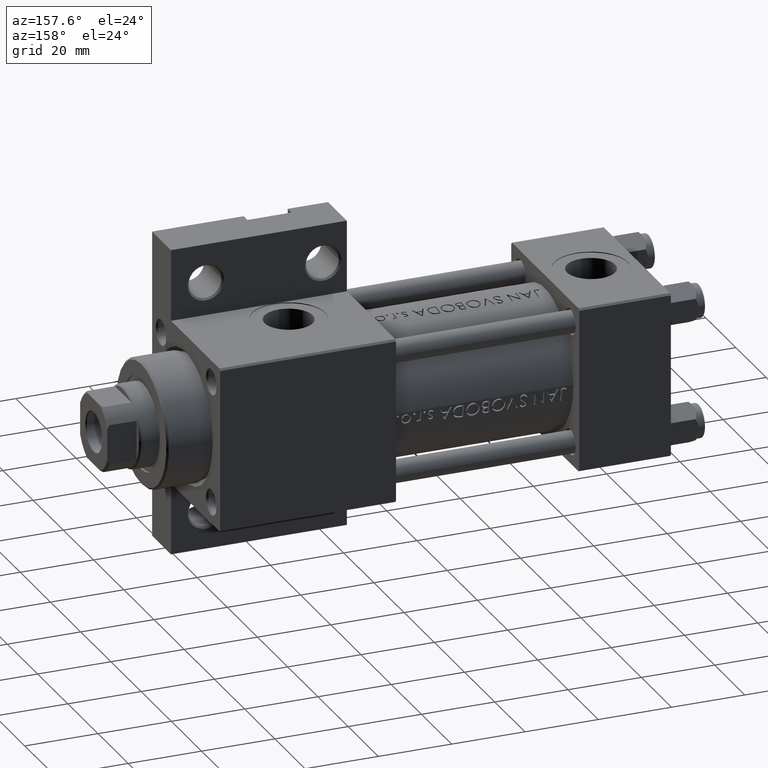
[diagram: clean part render]
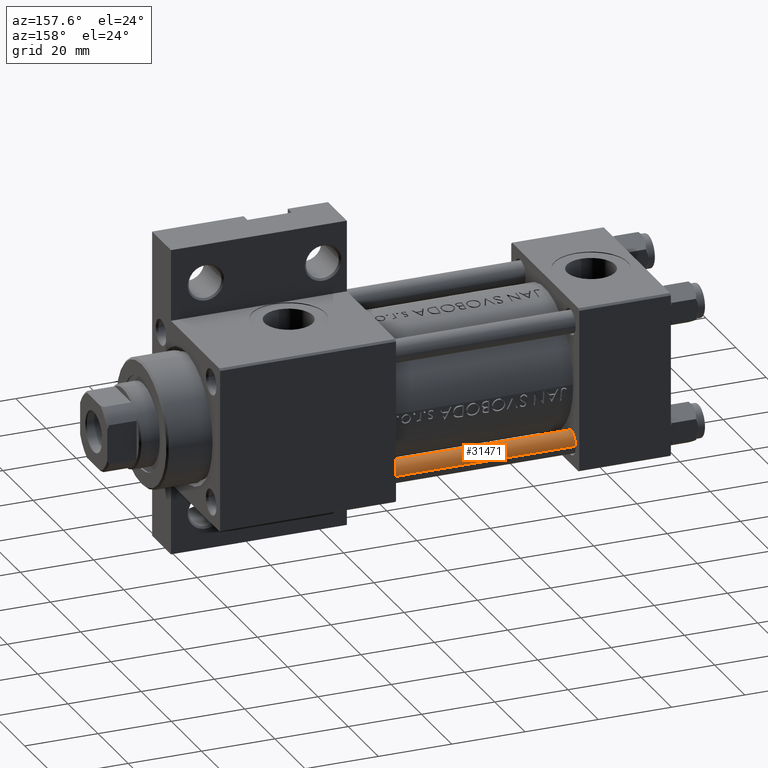
[diagram: same view with one face highlighted and labeled with its STEP entity id]
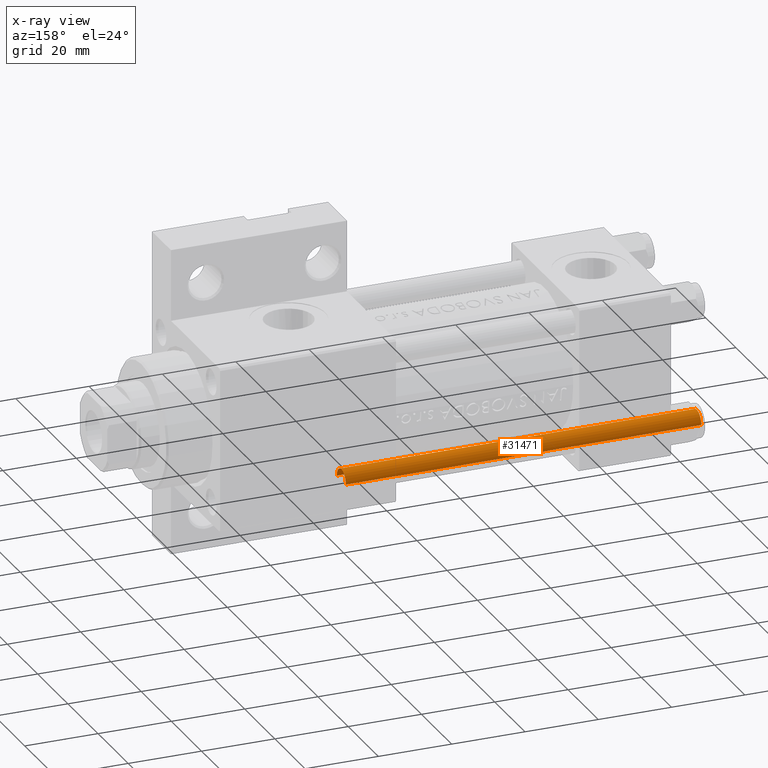
[diagram: x-ray of the same camera — body ghosted, the highlighted face saturated]
A machine part, auxiliary view. The second image highlights one B-rep face of the part: STEP entity #31471.
The next image is the same camera in x-ray: the body ghosted, the highlighted face saturated — about 0% of this face is hidden behind the body in this view.
In plain terms, the highlighted cylindrical surface (edge-blend (fillet) strip) has radius 3 mm, axis along (-1, -0, 0).
Its self-contained STEP definition (entity closure, byte-faithful):
#2288 = AXIS2_PLACEMENT_3D ( 'NONE', #33256, #31647, #35517 ) ;
#2649 = CARTESIAN_POINT ( 'NONE',  ( -3.000000000000000444, 0.000000000000000000, 0.5000000000000281997 ) ) ;
#3348 = CARTESIAN_POINT ( 'NONE',  ( -3.000000000000000444, 0.000000000000000000, 98.00000000000000000 ) ) ;
#3568 = CIRCLE ( 'NONE', #19747, 3.000000000000000444 ) ;
#5930 = CARTESIAN_POINT ( 'NONE',  ( 3.000000000000000444, 3.673940397442060361E-16, 98.00000000000000000 ) ) ;
#5991 = CARTESIAN_POINT ( 'NONE',  ( 3.000000000000000444, 3.673940397442060361E-16, 97.50000000000001421 ) ) ;
#8453 = DIRECTION ( 'NONE',  ( 0.000000000000000000, 0.000000000000000000, -1.000000000000000000 ) ) ;
#8809 = CARTESIAN_POINT ( 'NONE',  ( 3.000000000000000444, 3.673940397442060361E-16, 0.5000000000000281997 ) ) ;
#9239 = DIRECTION ( 'NONE',  ( -1.000000000000000000, 0.000000000000000000, 0.000000000000000000 ) ) ;
#12522 = ORIENTED_EDGE ( 'NONE', *, *, #44628, .T. ) ;
#13025 = CARTESIAN_POINT ( 'NONE',  ( 0.000000000000000000, 0.000000000000000000, 97.50000000000001421 ) ) ;
#13577 = VERTEX_POINT ( 'NONE', #18100 ) ;
#14953 = VERTEX_POINT ( 'NONE', #5991 ) ;
#15295 = ORIENTED_EDGE ( 'NONE', *, *, #21025, .T. ) ;
#18100 = CARTESIAN_POINT ( 'NONE',  ( -3.000000000000000444, 0.000000000000000000, 97.50000000000001421 ) ) ;
#19390 = CARTESIAN_POINT ( 'NONE',  ( 0.000000000000000000, 0.000000000000000000, 98.00000000000000000 ) ) ;
#19540 = VERTEX_POINT ( 'NONE', #8809 ) ;
#19628 = CYLINDRICAL_SURFACE ( 'NONE', #22240, 3.000000000000000444 ) ;
#19747 = AXIS2_PLACEMENT_3D ( 'NONE', #13025, #8453, #34983 ) ;
#21025 = EDGE_CURVE ( 'NONE', #13577, #14953, #3568, .T. ) ;
#22240 = AXIS2_PLACEMENT_3D ( 'NONE', #19390, #23238, #9239 ) ;
#23238 = DIRECTION ( 'NONE',  ( -0.000000000000000000, -0.000000000000000000, -1.000000000000000000 ) ) ;
#23874 = VERTEX_POINT ( 'NONE', #2649 ) ;
#24475 = LINE ( 'NONE', #5930, #27161 ) ;
#27161 = VECTOR ( 'NONE', #43543, 1000.000000000000000 ) ;
#28750 = VECTOR ( 'NONE', #32741, 1000.000000000000000 ) ;
#31471 = ADVANCED_FACE ( 'NONE', ( #37972 ), #19628, .T. ) ;
#31647 = DIRECTION ( 'NONE',  ( -0.000000000000000000, -0.000000000000000000, 1.000000000000000000 ) ) ;
#31698 = EDGE_CURVE ( 'NONE', #19540, #23874, #41539, .T. ) ;
#32741 = DIRECTION ( 'NONE',  ( -0.000000000000000000, -0.000000000000000000, -1.000000000000000000 ) ) ;
#33256 = CARTESIAN_POINT ( 'NONE',  ( 0.000000000000000000, 0.000000000000000000, 0.5000000000000281997 ) ) ;
#34983 = DIRECTION ( 'NONE',  ( 1.000000000000000000, 0.000000000000000000, 0.000000000000000000 ) ) ;
#35517 = DIRECTION ( 'NONE',  ( 1.000000000000000000, 0.000000000000000000, 0.000000000000000000 ) ) ;
#37693 = ORIENTED_EDGE ( 'NONE', *, *, #31698, .T. ) ;
#37972 = FACE_OUTER_BOUND ( 'NONE', #41322, .T. ) ;
#39367 = ORIENTED_EDGE ( 'NONE', *, *, #46490, .F. ) ;
#41322 = EDGE_LOOP ( 'NONE', ( #15295, #12522, #37693, #39367 ) ) ;
#41539 = CIRCLE ( 'NONE', #2288, 3.000000000000000444 ) ;
#43543 = DIRECTION ( 'NONE',  ( -0.000000000000000000, -0.000000000000000000, -1.000000000000000000 ) ) ;
#44101 = LINE ( 'NONE', #3348, #28750 ) ;
#44628 = EDGE_CURVE ( 'NONE', #14953, #19540, #24475, .T. ) ;
#46490 = EDGE_CURVE ( 'NONE', #13577, #23874, #44101, .T. ) ;